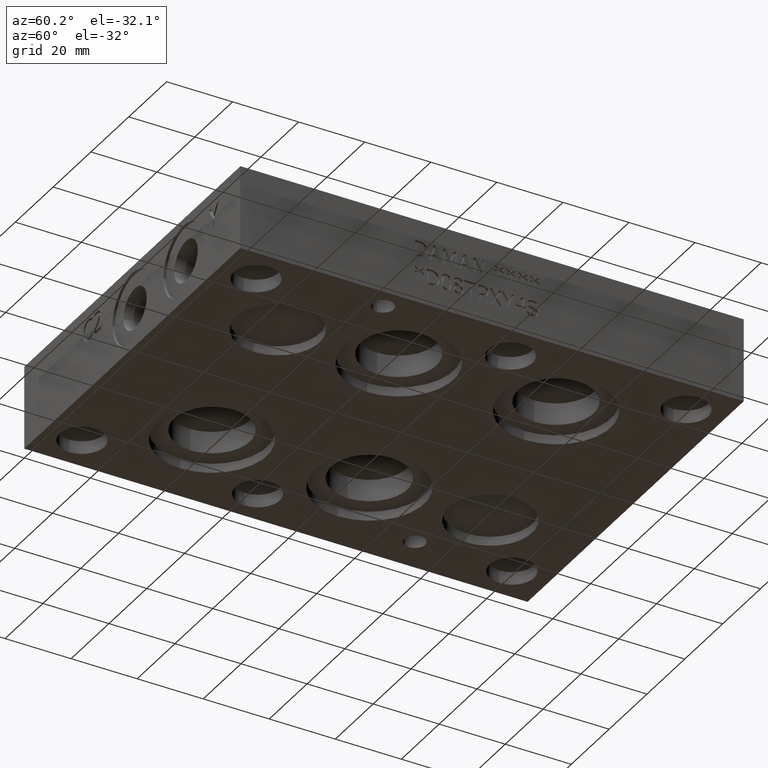
[diagram: clean part render]
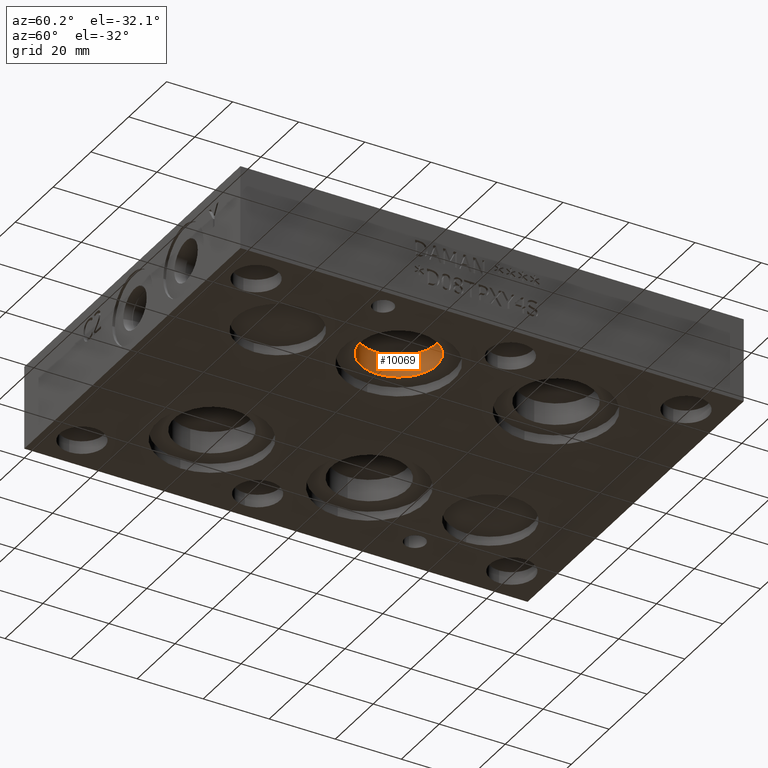
[diagram: same view with one face highlighted and labeled with its STEP entity id]
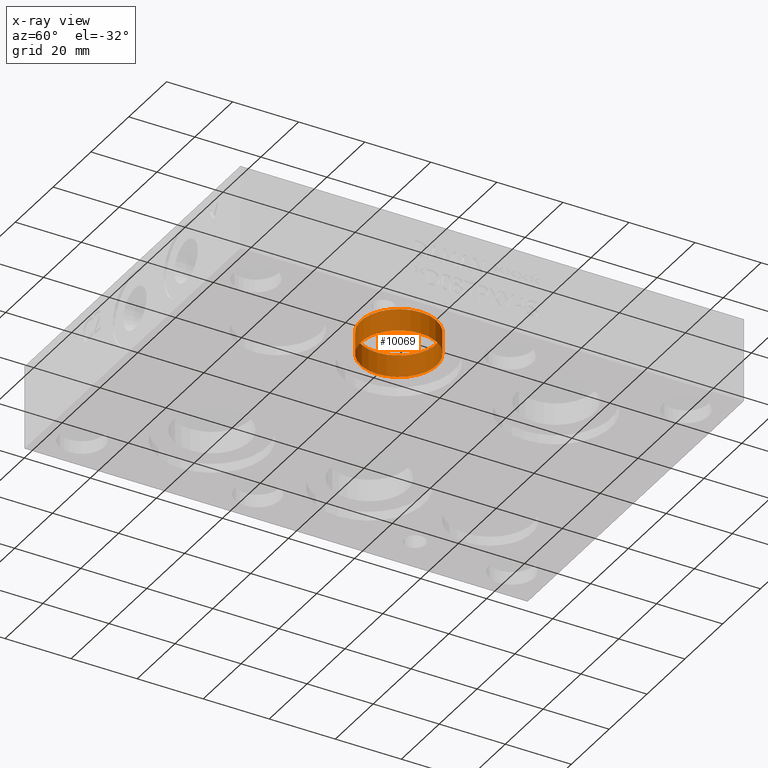
[diagram: x-ray of the same camera — body ghosted, the highlighted face saturated]
A machine part, auxiliary view. The second image highlights one B-rep face of the part: STEP entity #10069.
The next image is the same camera in x-ray: the body ghosted, the highlighted face saturated — about 0% of this face is hidden behind the body in this view.
In plain terms, the highlighted cylindrical surface (bore or boss wall) has radius 11.5062 mm, axis along (0, 0, -1).
Its self-contained STEP definition (entity closure, byte-faithful):
#36=CYLINDRICAL_SURFACE('',#10571,11.5062);
#149=CIRCLE('',#10561,11.5062);
#151=CIRCLE('',#10563,11.5062);
#154=CIRCLE('',#10567,11.5062);
#1185=FACE_OUTER_BOUND('',#1733,.T.);
#1733=EDGE_LOOP('',(#8465,#8466,#8467,#8468,#8469));
#2741=LINE('',#16910,#3707);
#3707=VECTOR('',#12503,11.5062);
#4588=VERTEX_POINT('',#16889);
#4589=VERTEX_POINT('',#16890);
#4593=VERTEX_POINT('',#16901);
#5947=EDGE_CURVE('',#4588,#4589,#149,.T.);
#5950=EDGE_CURVE('',#4589,#4588,#151,.T.);
#5953=EDGE_CURVE('',#4593,#4593,#154,.T.);
#5957=EDGE_CURVE('',#4593,#4589,#2741,.T.);
#8465=ORIENTED_EDGE('',*,*,#5953,.T.);
#8466=ORIENTED_EDGE('',*,*,#5957,.T.);
#8467=ORIENTED_EDGE('',*,*,#5947,.F.);
#8468=ORIENTED_EDGE('',*,*,#5950,.F.);
#8469=ORIENTED_EDGE('',*,*,#5957,.F.);
#10069=ADVANCED_FACE('',(#1185),#36,.F.);
#10561=AXIS2_PLACEMENT_3D('',#16891,#12479,#12480);
#10563=AXIS2_PLACEMENT_3D('',#16895,#12484,#12485);
#10567=AXIS2_PLACEMENT_3D('',#16902,#12492,#12493);
#10571=AXIS2_PLACEMENT_3D('',#16909,#12501,#12502);
#12479=DIRECTION('center_axis',(0.,0.,-1.));
#12480=DIRECTION('ref_axis',(1.,0.,0.));
#12484=DIRECTION('center_axis',(0.,0.,-1.));
#12485=DIRECTION('ref_axis',(1.,0.,0.));
#12492=DIRECTION('center_axis',(0.,0.,-1.));
#12493=DIRECTION('ref_axis',(1.,0.,0.));
#12501=DIRECTION('center_axis',(0.,0.,-1.));
#12502=DIRECTION('ref_axis',(1.,0.,0.));
#12503=DIRECTION('',(0.,0.,1.));
#16889=CARTESIAN_POINT('',(97.2566,64.2874,9.43711));
#16890=CARTESIAN_POINT('',(74.2442,64.2874,9.43711));
#16891=CARTESIAN_POINT('Origin',(85.7504,64.2874,9.43711));
#16895=CARTESIAN_POINT('Origin',(85.7504,64.2874,9.43711));
#16901=CARTESIAN_POINT('',(74.2442,64.2874,2.794));
#16902=CARTESIAN_POINT('Origin',(85.7504,64.2874,2.794));
#16909=CARTESIAN_POINT('Origin',(85.7504,64.2874,4.718555));
#16910=CARTESIAN_POINT('',(74.2442,64.2874,4.718555));